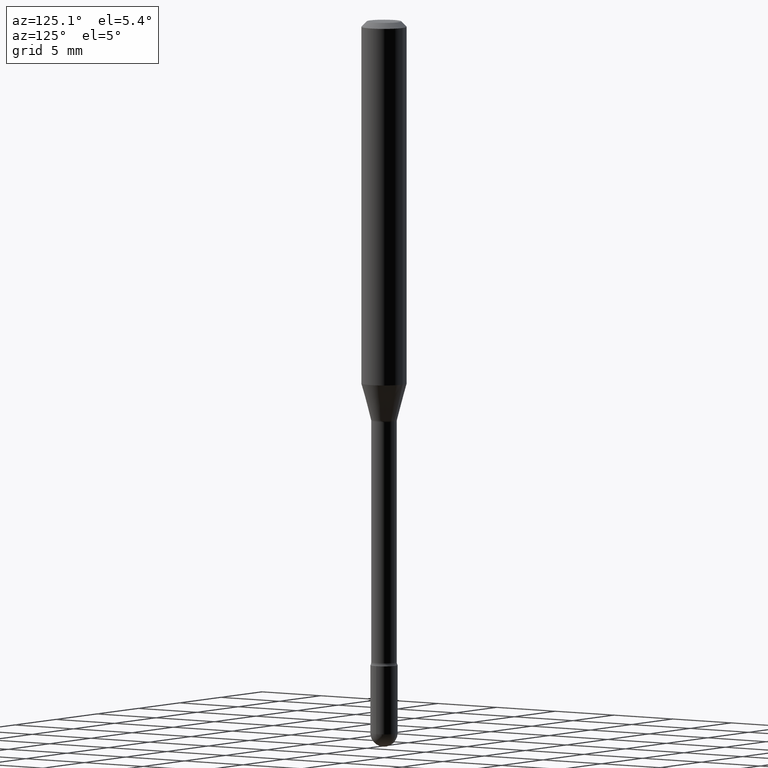
[diagram: clean part render]
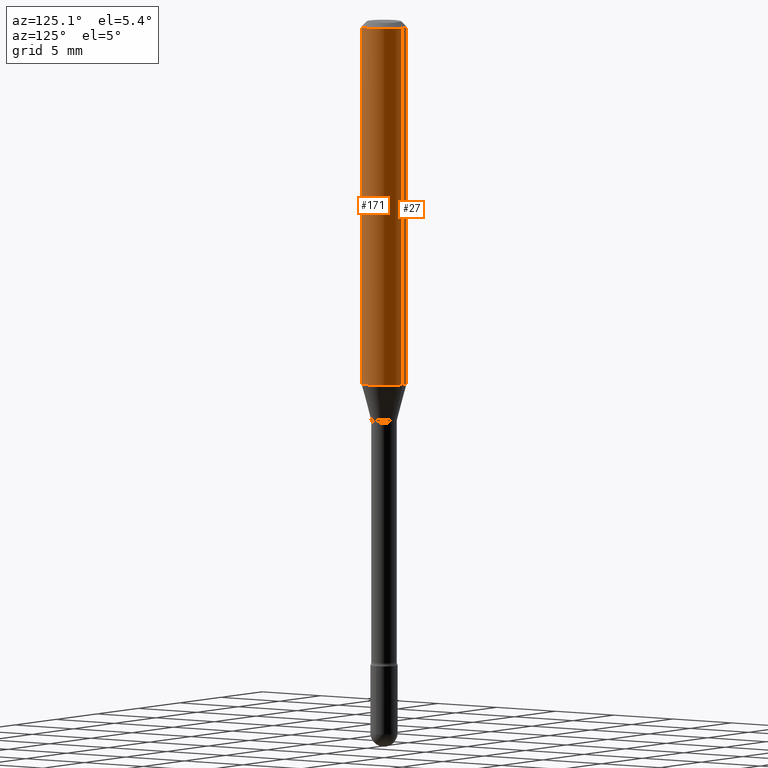
[diagram: same view with one multi-face feature highlighted, each face labeled with its STEP entity id]
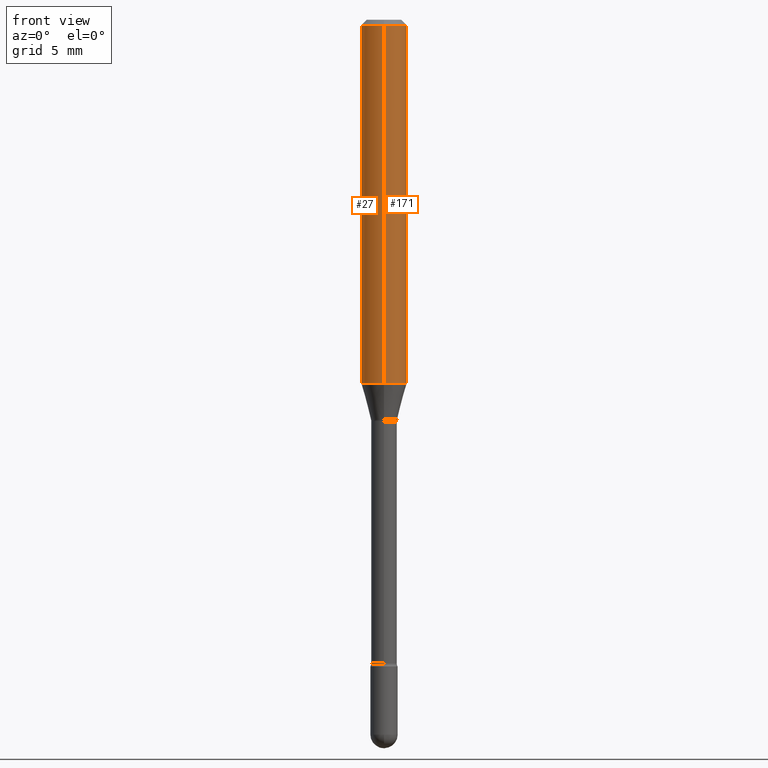
[diagram: same view with one multi-face feature highlighted, each face labeled with its STEP entity id]
A machine part, auxiliary view. The highlighted faces form ONE feature: a constant-radius fillet chain: 2 tangent blend faces with common blend radius 1.5875 mm. The faces share edges in the B-rep.
A second angle (front view) of the same feature is appended — it is thin or edge-on in the first view.
Their STEP definitions:
[1] entity #171 (Cylinder):
#11 = CARTESIAN_POINT ( 'NONE',  ( 4.440892098500869722E-16, 0.06249999999999653055, -0.9983016154937485176 ) ) ;
#32 = CIRCLE ( 'NONE', #414, 0.06250000000000000000 ) ;
#41 = DIRECTION ( 'NONE',  ( -6.982962677686265922E-15, -1.000000000000000000, 3.491486425241759948E-15 ) ) ;
#42 = VECTOR ( 'NONE', #527, 39.37007874015748143 ) ;
#49 = ORIENTED_EDGE ( 'NONE', *, *, #141, .F. ) ;
#95 = VERTEX_POINT ( 'NONE', #446 ) ;
#97 = DIRECTION ( 'NONE',  ( -2.445465254371968142E-29, 3.491486425241759553E-15, 1.000000000000000000 ) ) ;
#99 = VERTEX_POINT ( 'NONE', #11 ) ;
#111 = CIRCLE ( 'NONE', #444, 0.06250000000000000000 ) ;
#124 = CYLINDRICAL_SURFACE ( 'NONE', #209, 0.06250000000000000000 ) ;
#125 = ORIENTED_EDGE ( 'NONE', *, *, #161, .T. ) ;
#141 = EDGE_CURVE ( 'NONE', #333, #481, #174, .T. ) ;
#142 = ORIENTED_EDGE ( 'NONE', *, *, #347, .F. ) ;
#146 = CARTESIAN_POINT ( 'NONE',  ( 3.668197881557972567E-31, -5.237229637862668616E-17, -0.01500000000000008271 ) ) ;
#161 = EDGE_CURVE ( 'NONE', #99, #95, #177, .T. ) ;
#170 = CARTESIAN_POINT ( 'NONE',  ( -4.364351673553916201E-16, -0.06250000000000000000, 6.962913004688561093E-16 ) ) ;
#171 = ADVANCED_FACE ( 'NONE', ( #271 ), #124, .T. ) ;
#174 = LINE ( 'NONE', #170, #222 ) ;
#177 = LINE ( 'NONE', #267, #42 ) ;
#183 = CARTESIAN_POINT ( 'NONE',  ( 2.441311914073365852E-29, -3.485556538793341018E-15, -0.9983016154937482955 ) ) ;
#198 = EDGE_LOOP ( 'NONE', ( #254, #125, #142, #49 ) ) ;
#209 = AXIS2_PLACEMENT_3D ( 'NONE', #483, #450, #41 ) ;
#222 = VECTOR ( 'NONE', #257, 39.37007874015748143 ) ;
#254 = ORIENTED_EDGE ( 'NONE', *, *, #372, .T. ) ;
#257 = DIRECTION ( 'NONE',  ( -2.445465254371968142E-29, 3.491486425241759553E-15, 1.000000000000000000 ) ) ;
#267 = CARTESIAN_POINT ( 'NONE',  ( 4.440892098500625669E-16, 0.06250000000000000000, 2.598554973136360665E-16 ) ) ;
#271 = FACE_OUTER_BOUND ( 'NONE', #198, .T. ) ;
#284 = CARTESIAN_POINT ( 'NONE',  ( -4.364351673553672147E-16, -0.06250000000000348332, -0.9983016154937480735 ) ) ;
#317 = DIRECTION ( 'NONE',  ( -2.445465254371968142E-29, 3.491486425241759553E-15, 1.000000000000000000 ) ) ;
#333 = VERTEX_POINT ( 'NONE', #284 ) ;
#347 = EDGE_CURVE ( 'NONE', #481, #95, #32, .T. ) ;
#365 = DIRECTION ( 'NONE',  ( -6.982962677686265922E-15, -1.000000000000000000, 3.483106191921935554E-15 ) ) ;
#372 = EDGE_CURVE ( 'NONE', #333, #99, #111, .T. ) ;
#414 = AXIS2_PLACEMENT_3D ( 'NONE', #146, #317, #365 ) ;
#444 = AXIS2_PLACEMENT_3D ( 'NONE', #183, #97, #458 ) ;
#446 = CARTESIAN_POINT ( 'NONE',  ( 4.440892098500871695E-16, 0.06249999999999995837, -0.01500000000000030129 ) ) ;
#450 = DIRECTION ( 'NONE',  ( -2.445465254371968142E-29, 3.491486425241759553E-15, 1.000000000000000000 ) ) ;
#458 = DIRECTION ( 'NONE',  ( -6.982962677686265922E-15, -1.000000000000000000, 4.370956789862821150E-15 ) ) ;
#474 = CARTESIAN_POINT ( 'NONE',  ( -4.364351673553912750E-16, -0.06250000000000005551, -0.01499999999999986587 ) ) ;
#481 = VERTEX_POINT ( 'NONE', #474 ) ;
#483 = CARTESIAN_POINT ( 'NONE',  ( -1.169113584055446105E-44, 1.669184350826100908E-30, 4.780733988912460139E-16 ) ) ;
#527 = DIRECTION ( 'NONE',  ( -2.445465254371968142E-29, 3.491486425241759553E-15, 1.000000000000000000 ) ) ;
[2] entity #27 (Cylinder):
#1 = FACE_OUTER_BOUND ( 'NONE', #80, .T. ) ;
#11 = CARTESIAN_POINT ( 'NONE',  ( 4.440892098500869722E-16, 0.06249999999999653055, -0.9983016154937485176 ) ) ;
#27 = ADVANCED_FACE ( 'NONE', ( #1 ), #489, .T. ) ;
#30 = DIRECTION ( 'NONE',  ( -6.982962677686265922E-15, -1.000000000000000000, 4.370956789862821150E-15 ) ) ;
#31 = DIRECTION ( 'NONE',  ( -2.445465254371968142E-29, 3.491486425241759553E-15, 1.000000000000000000 ) ) ;
#33 = EDGE_CURVE ( 'NONE', #99, #333, #460, .T. ) ;
#37 = DIRECTION ( 'NONE',  ( -2.445465254371968142E-29, 3.491486425241759553E-15, 1.000000000000000000 ) ) ;
#42 = VECTOR ( 'NONE', #527, 39.37007874015748143 ) ;
#80 = EDGE_LOOP ( 'NONE', ( #501, #155, #242, #467 ) ) ;
#95 = VERTEX_POINT ( 'NONE', #446 ) ;
#99 = VERTEX_POINT ( 'NONE', #11 ) ;
#134 = DIRECTION ( 'NONE',  ( -6.982962677686265922E-15, -1.000000000000000000, 3.491486425241759948E-15 ) ) ;
#141 = EDGE_CURVE ( 'NONE', #333, #481, #174, .T. ) ;
#155 = ORIENTED_EDGE ( 'NONE', *, *, #33, .T. ) ;
#161 = EDGE_CURVE ( 'NONE', #99, #95, #177, .T. ) ;
#170 = CARTESIAN_POINT ( 'NONE',  ( -4.364351673553916201E-16, -0.06250000000000000000, 6.962913004688561093E-16 ) ) ;
#174 = LINE ( 'NONE', #170, #222 ) ;
#177 = LINE ( 'NONE', #267, #42 ) ;
#222 = VECTOR ( 'NONE', #257, 39.37007874015748143 ) ;
#233 = CARTESIAN_POINT ( 'NONE',  ( 3.668197881557972567E-31, -5.237229637862668616E-17, -0.01500000000000008271 ) ) ;
#242 = ORIENTED_EDGE ( 'NONE', *, *, #141, .T. ) ;
#245 = AXIS2_PLACEMENT_3D ( 'NONE', #233, #538, #536 ) ;
#257 = DIRECTION ( 'NONE',  ( -2.445465254371968142E-29, 3.491486425241759553E-15, 1.000000000000000000 ) ) ;
#267 = CARTESIAN_POINT ( 'NONE',  ( 4.440892098500625669E-16, 0.06250000000000000000, 2.598554973136360665E-16 ) ) ;
#284 = CARTESIAN_POINT ( 'NONE',  ( -4.364351673553672147E-16, -0.06250000000000348332, -0.9983016154937480735 ) ) ;
#333 = VERTEX_POINT ( 'NONE', #284 ) ;
#352 = EDGE_CURVE ( 'NONE', #95, #481, #470, .T. ) ;
#355 = AXIS2_PLACEMENT_3D ( 'NONE', #565, #37, #30 ) ;
#442 = CARTESIAN_POINT ( 'NONE',  ( -1.169113584055446105E-44, 1.669184350826100908E-30, 4.780733988912460139E-16 ) ) ;
#446 = CARTESIAN_POINT ( 'NONE',  ( 4.440892098500871695E-16, 0.06249999999999995837, -0.01500000000000030129 ) ) ;
#460 = CIRCLE ( 'NONE', #355, 0.06250000000000000000 ) ;
#467 = ORIENTED_EDGE ( 'NONE', *, *, #352, .F. ) ;
#470 = CIRCLE ( 'NONE', #245, 0.06250000000000000000 ) ;
#474 = CARTESIAN_POINT ( 'NONE',  ( -4.364351673553912750E-16, -0.06250000000000005551, -0.01499999999999986587 ) ) ;
#481 = VERTEX_POINT ( 'NONE', #474 ) ;
#487 = AXIS2_PLACEMENT_3D ( 'NONE', #442, #31, #134 ) ;
#489 = CYLINDRICAL_SURFACE ( 'NONE', #487, 0.06250000000000000000 ) ;
#501 = ORIENTED_EDGE ( 'NONE', *, *, #161, .F. ) ;
#527 = DIRECTION ( 'NONE',  ( -2.445465254371968142E-29, 3.491486425241759553E-15, 1.000000000000000000 ) ) ;
#536 = DIRECTION ( 'NONE',  ( -6.982962677686265922E-15, -1.000000000000000000, 3.483106191921935554E-15 ) ) ;
#538 = DIRECTION ( 'NONE',  ( -2.445465254371968142E-29, 3.491486425241759553E-15, 1.000000000000000000 ) ) ;
#565 = CARTESIAN_POINT ( 'NONE',  ( 2.441311914073365852E-29, -3.485556538793341018E-15, -0.9983016154937482955 ) ) ;